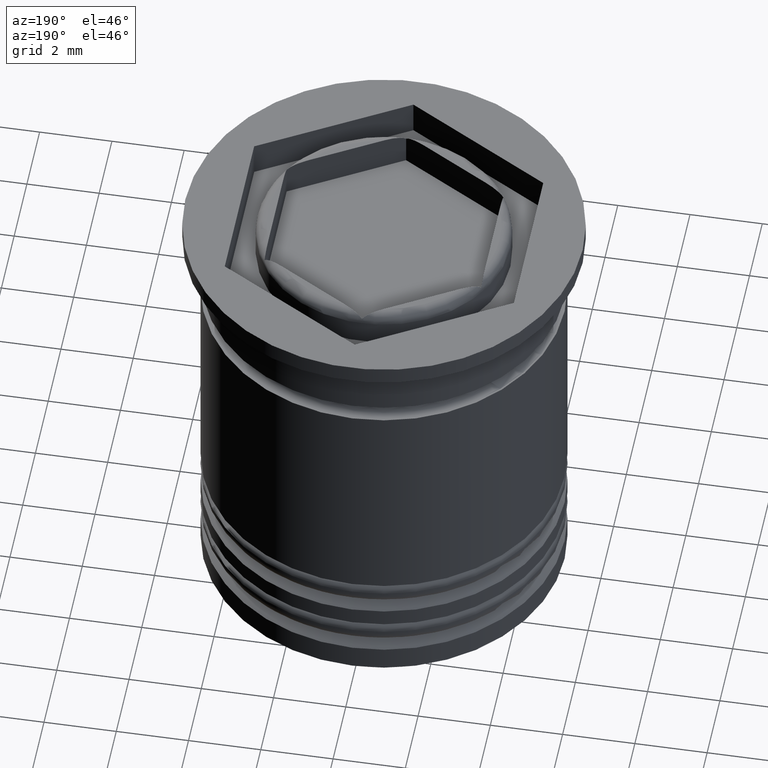
[diagram: clean part render]
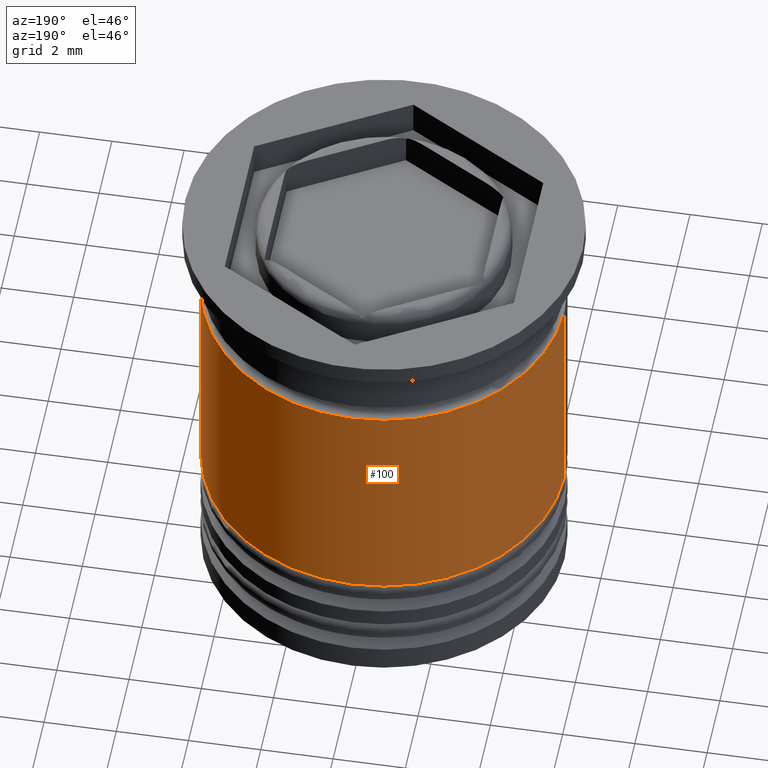
[diagram: same view with one face highlighted and labeled with its STEP entity id]
A machine part, auxiliary view. The second image highlights one B-rep face of the part: STEP entity #100.
In plain terms, the highlighted cylindrical surface (partial cylindrical patch) has radius 5 mm, axis along (-0, -0, 1).
Its self-contained STEP definition (entity closure, byte-faithful):
#56 = AXIS2_PLACEMENT_3D ( 'NONE', #202, #1641, #542 ) ;
#100 = ADVANCED_FACE ( 'NONE', ( #1186 ), #1152, .T. ) ;
#110 = ORIENTED_EDGE ( 'NONE', *, *, #1580, .F. ) ;
#145 = LINE ( 'NONE', #2053, #1156 ) ;
#202 = CARTESIAN_POINT ( 'NONE',  ( 0.000000000000000000, 0.000000000000000000, -9.000000000000001776 ) ) ;
#290 = CIRCLE ( 'NONE', #56, 5.000000000000000888 ) ;
#295 = CIRCLE ( 'NONE', #1937, 4.999999999999999112 ) ;
#397 = CARTESIAN_POINT ( 'NONE',  ( 0.000000000000000000, 0.000000000000000000, -2.500000000000000000 ) ) ;
#409 = CARTESIAN_POINT ( 'NONE',  ( 5.000000000000000888, 0.000000000000000000, -9.000000000000001776 ) ) ;
#424 = VERTEX_POINT ( 'NONE', #1049 ) ;
#542 = DIRECTION ( 'NONE',  ( 1.000000000000000000, 0.000000000000000000, 0.000000000000000000 ) ) ;
#620 = DIRECTION ( 'NONE',  ( -0.000000000000000000, -0.000000000000000000, 1.000000000000000000 ) ) ;
#668 = VERTEX_POINT ( 'NONE', #1857 ) ;
#684 = CARTESIAN_POINT ( 'NONE',  ( -4.999999999999999112, 6.123233995736766282E-16, -2.500000000000000000 ) ) ;
#753 = EDGE_LOOP ( 'NONE', ( #828, #949, #1853, #110 ) ) ;
#828 = ORIENTED_EDGE ( 'NONE', *, *, #1214, .T. ) ;
#949 = ORIENTED_EDGE ( 'NONE', *, *, #1094, .T. ) ;
#981 = CARTESIAN_POINT ( 'NONE',  ( 5.000000000000000000, 0.000000000000000000, 0.000000000000000000 ) ) ;
#1043 = DIRECTION ( 'NONE',  ( -0.000000000000000000, -0.000000000000000000, 1.000000000000000000 ) ) ;
#1049 = CARTESIAN_POINT ( 'NONE',  ( -5.000000000000000888, 6.123233995736767268E-16, -9.000000000000001776 ) ) ;
#1094 = EDGE_CURVE ( 'NONE', #424, #1129, #145, .T. ) ;
#1129 = VERTEX_POINT ( 'NONE', #684 ) ;
#1152 = CYLINDRICAL_SURFACE ( 'NONE', #2030, 5.000000000000000000 ) ;
#1156 = VECTOR ( 'NONE', #620, 1000.000000000000000 ) ;
#1182 = DIRECTION ( 'NONE',  ( -0.000000000000000000, -0.000000000000000000, 1.000000000000000000 ) ) ;
#1186 = FACE_OUTER_BOUND ( 'NONE', #753, .T. ) ;
#1214 = EDGE_CURVE ( 'NONE', #1416, #424, #290, .T. ) ;
#1416 = VERTEX_POINT ( 'NONE', #409 ) ;
#1472 = DIRECTION ( 'NONE',  ( -0.000000000000000000, -0.000000000000000000, 1.000000000000000000 ) ) ;
#1514 = DIRECTION ( 'NONE',  ( 1.000000000000000000, 0.000000000000000000, 0.000000000000000000 ) ) ;
#1580 = EDGE_CURVE ( 'NONE', #1416, #668, #1893, .T. ) ;
#1641 = DIRECTION ( 'NONE',  ( -0.000000000000000000, -0.000000000000000000, 1.000000000000000000 ) ) ;
#1657 = CARTESIAN_POINT ( 'NONE',  ( 0.000000000000000000, 0.000000000000000000, 0.000000000000000000 ) ) ;
#1661 = VECTOR ( 'NONE', #1182, 1000.000000000000000 ) ;
#1782 = EDGE_CURVE ( 'NONE', #668, #1129, #295, .T. ) ;
#1853 = ORIENTED_EDGE ( 'NONE', *, *, #1782, .F. ) ;
#1857 = CARTESIAN_POINT ( 'NONE',  ( 4.999999999999999112, 0.000000000000000000, -2.500000000000000000 ) ) ;
#1893 = LINE ( 'NONE', #981, #1661 ) ;
#1937 = AXIS2_PLACEMENT_3D ( 'NONE', #397, #1043, #1514 ) ;
#1994 = DIRECTION ( 'NONE',  ( 1.000000000000000000, 0.000000000000000000, 0.000000000000000000 ) ) ;
#2030 = AXIS2_PLACEMENT_3D ( 'NONE', #1657, #1472, #1994 ) ;
#2053 = CARTESIAN_POINT ( 'NONE',  ( -5.000000000000000000, 6.123233995736766282E-16, 0.000000000000000000 ) ) ;